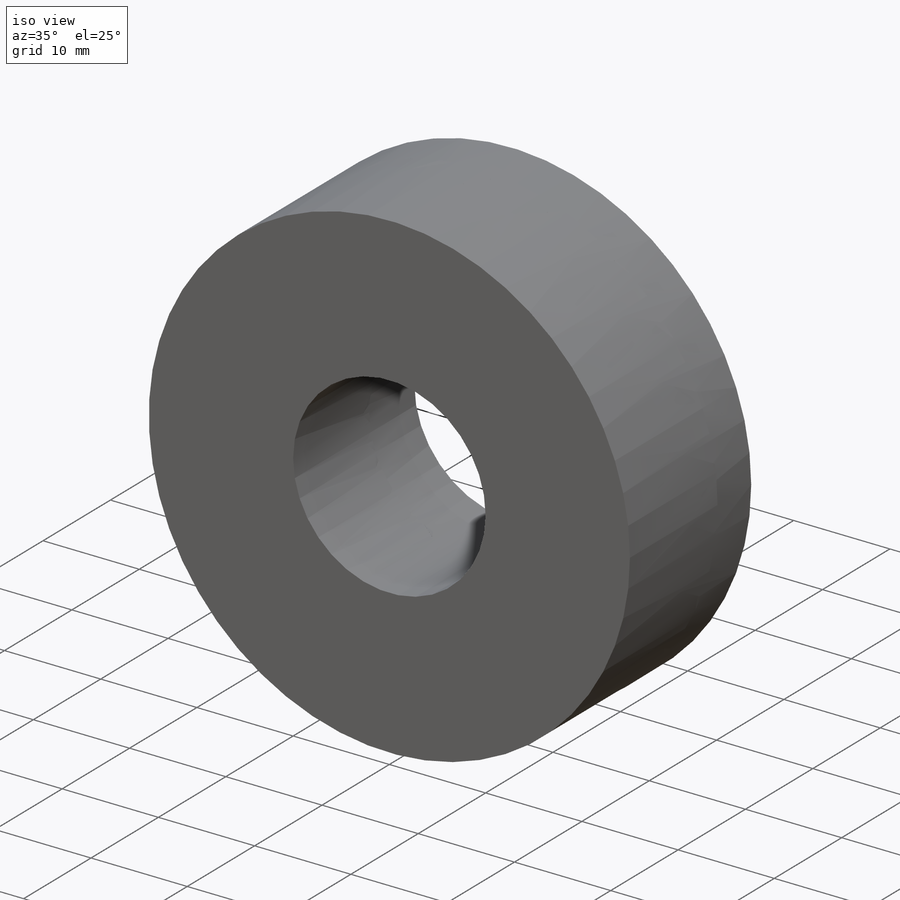
[diagram: iso view]
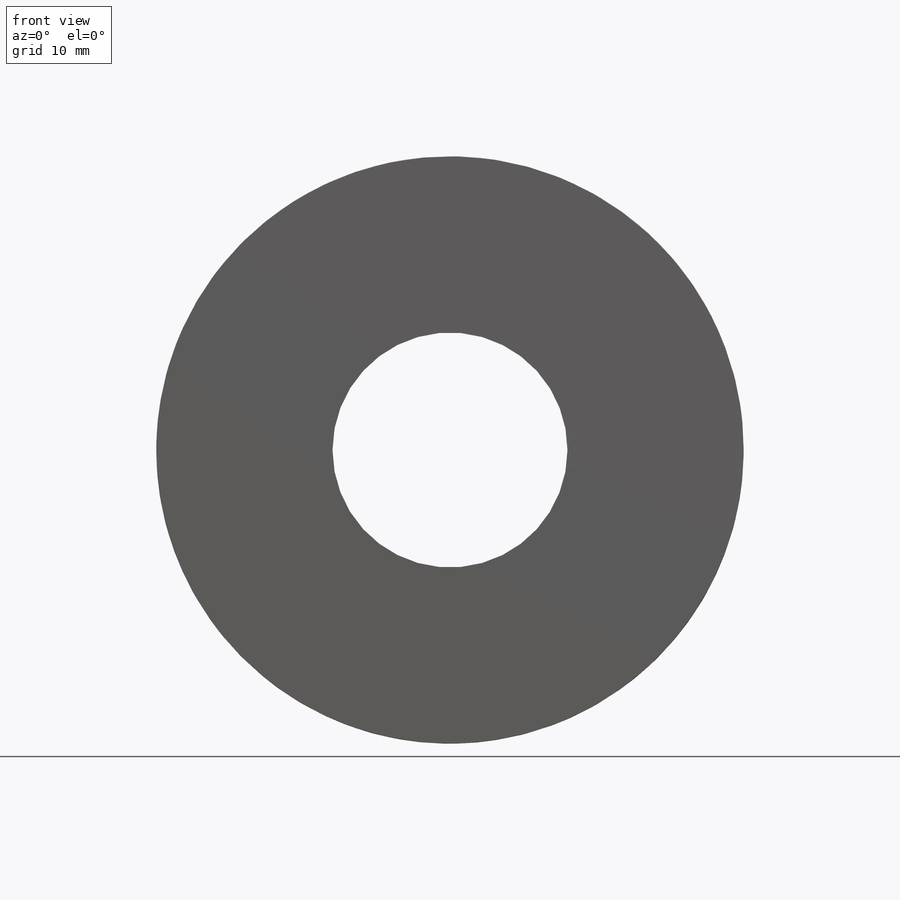
[diagram: front view]
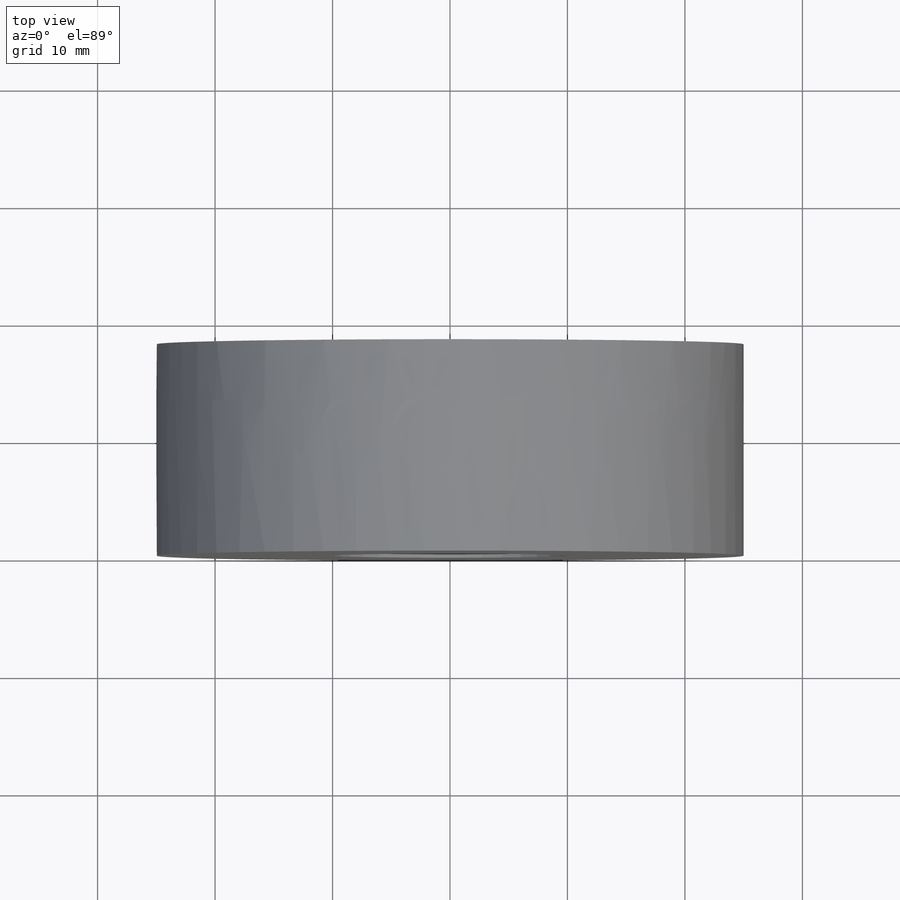
[diagram: top view]
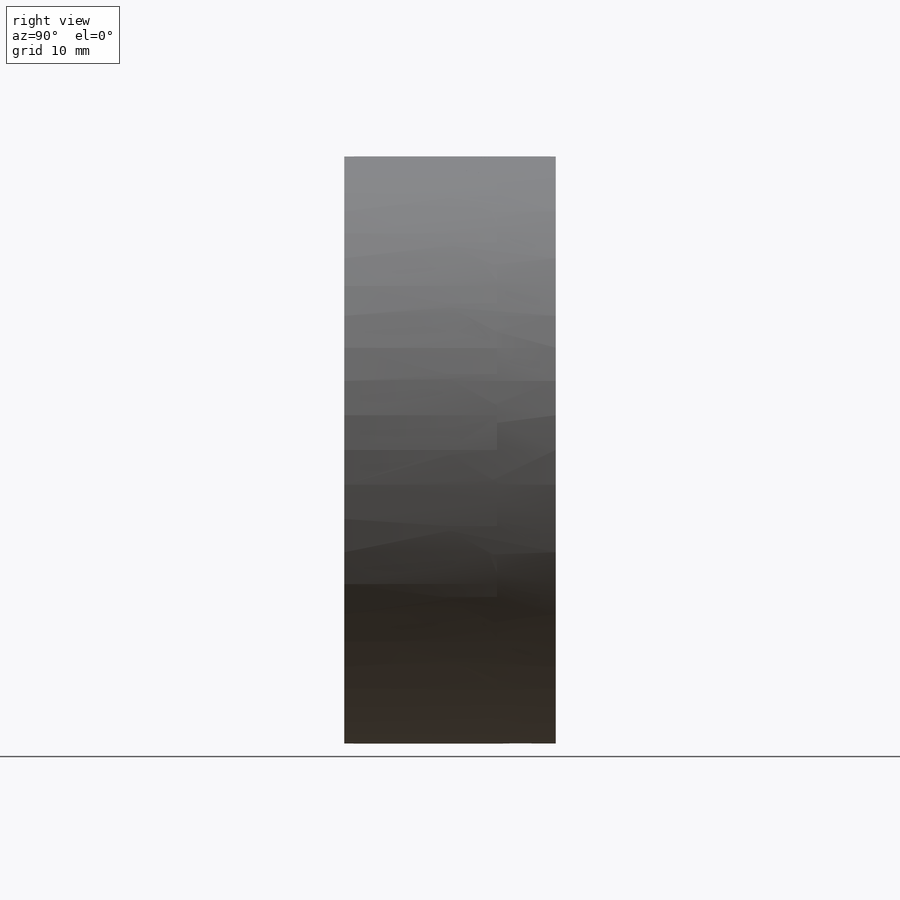
[diagram: right view]
SOLIDWORKS PART (.sldprt)
format: sldprt  version: not decoded by parser v0  size: 487,936 bytes
history: native  units: mm
features: plane x5, sketch x4, material x1, revolve x1, cut_extrude x1, pattern_circular x1, extrude x1 (+8 scaffold rows collapsed)
feature tree (22):
  scaffold x8  (default folders/planes/origin — collapsed)
  material  "Rostfreier Chromstahl"
  plane  "Ebene vorne"
  plane  "Ebene oben"
  plane  "Ebene rechts"
  sketch  "Skizze1"  dims[c1.D1=20.0mm c1.D2=50.0mm c1.D3=13.0mm c1.D4=13.0mm c2.D4=~83.479605deg]
  revolve  "Rotation1"  Angle=360deg
  sketch  "Skizze2"
  plane  "Ebene1"
  sketch  "Skizze3"  dims[c1.D2=0.5mm c1.D1=~2.998865mm c2.D1=60.0deg c2.D3=10.0mm c2.D4=12.0mm]
  cut_extrude  "Schnitt-Linear austragen1"  [1 undecoded]
  pattern_circular  "Kreismuster1"  Count=24 Angle=360deg
  plane  "Ebene2"
  sketch  "Skizze4"  dims[D1=20.0mm]
  extrude  "Aufsatz-Linear austragen1"  Depth=5mm
decode coverage: 6 of 8 modeling features carry decoded parameters
note: ~ marks probable driven/reference dimensions
note: 1 parameter value undecoded
note: suppression state not decoded; provenance and decode notes live in map.json
